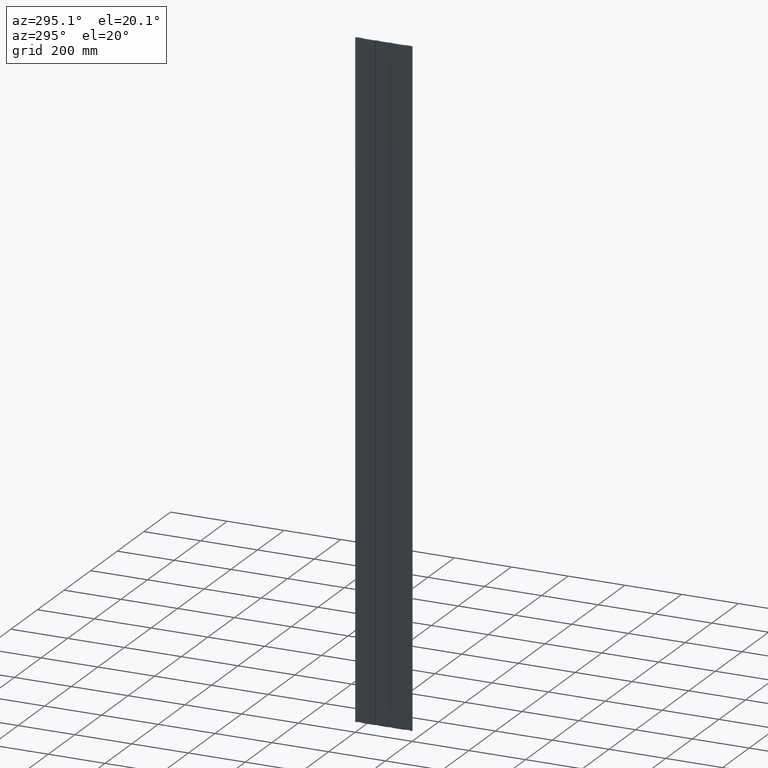
[diagram: clean part render]
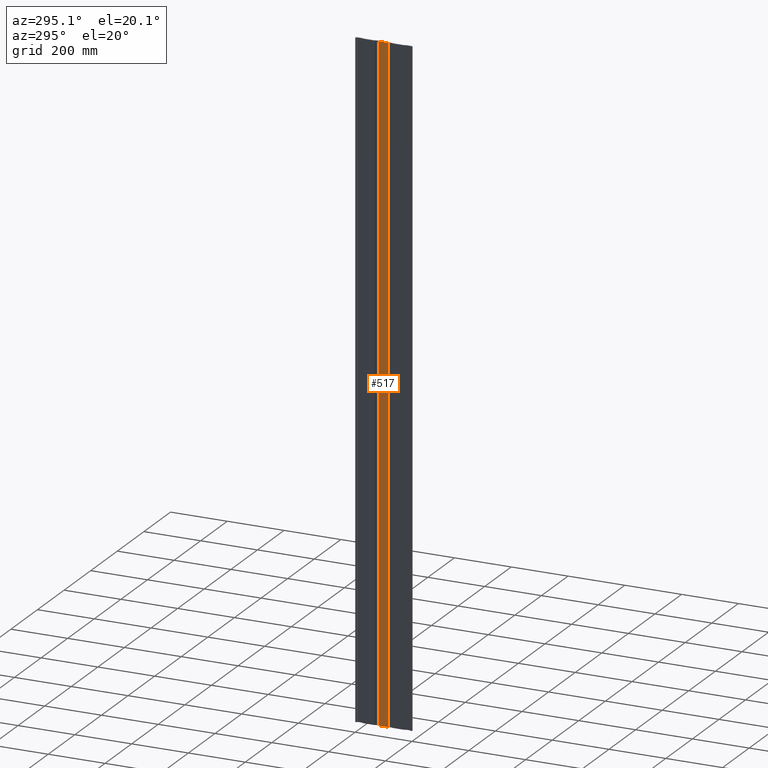
[diagram: same view with one face highlighted and labeled with its STEP entity id]
A machine part, auxiliary view. The second image highlights one B-rep face of the part: STEP entity #517.
In plain terms, the highlighted planar face has unit normal (1, 0, 0).
Its self-contained STEP definition (entity closure, byte-faithful):
#19 = EDGE_CURVE ( 'NONE', #1477, #1703, #2152, .T. ) ;
#29 = EDGE_CURVE ( 'NONE', #441, #1703, #1513, .T. ) ;
#45 = ORIENTED_EDGE ( 'NONE', *, *, #19, .T. ) ;
#104 = ORIENTED_EDGE ( 'NONE', *, *, #474, .T. ) ;
#130 = CARTESIAN_POINT ( 'NONE',  ( 1.301042606982605300E-015, 115.9378221735089200, 1162.000000000000000 ) ) ;
#177 = DIRECTION ( 'NONE',  ( -0.0000000000000000000, -1.000000000000000000, -0.0000000000000000000 ) ) ;
#327 = PLANE ( 'NONE',  #1989 ) ;
#441 = VERTEX_POINT ( 'NONE', #1224 ) ;
#462 = CARTESIAN_POINT ( 'NONE',  ( 3.668567479684642600E-017, 84.06217782649108000, -1162.000000000000000 ) ) ;
#474 = EDGE_CURVE ( 'NONE', #1967, #1477, #1122, .T. ) ;
#503 = CARTESIAN_POINT ( 'NONE',  ( 1.301042606982605300E-015, 115.9378221735089200, 1162.000000000000000 ) ) ;
#505 = DIRECTION ( 'NONE',  ( -0.0000000000000000000, -1.000000000000000000, -0.0000000000000000000 ) ) ;
#514 = DIRECTION ( 'NONE',  ( 1.000000000000000000, 0.0000000000000000000, 0.0000000000000000000 ) ) ;
#517 = ADVANCED_FACE ( 'NONE', ( #2023 ), #327, .F. ) ;
#561 = EDGE_LOOP ( 'NONE', ( #45, #2210, #2482, #104 ) ) ;
#685 = VECTOR ( 'NONE', #505, 1000.000000000000000 ) ;
#974 = VECTOR ( 'NONE', #1697, 1000.000000000000000 ) ;
#1122 = LINE ( 'NONE', #503, #1383 ) ;
#1224 = CARTESIAN_POINT ( 'NONE',  ( 3.668567479684642600E-017, 84.06217782649108000, 1162.000000000000000 ) ) ;
#1383 = VECTOR ( 'NONE', #2483, 1000.000000000000000 ) ;
#1477 = VERTEX_POINT ( 'NONE', #2119 ) ;
#1489 = CARTESIAN_POINT ( 'NONE',  ( 3.668567479684642600E-017, 84.06217782649108000, 1162.000000000000000 ) ) ;
#1513 = LINE ( 'NONE', #1489, #974 ) ;
#1648 = CARTESIAN_POINT ( 'NONE',  ( 3.668567479684642600E-017, 84.06217782649108000, 1162.000000000000000 ) ) ;
#1697 = DIRECTION ( 'NONE',  ( -0.0000000000000000000, -0.0000000000000000000, -1.000000000000000000 ) ) ;
#1703 = VERTEX_POINT ( 'NONE', #462 ) ;
#1857 = CARTESIAN_POINT ( 'NONE',  ( 3.668567479684642600E-017, 84.06217782649108000, 1162.000000000000000 ) ) ;
#1868 = DIRECTION ( 'NONE',  ( 0.0000000000000000000, 0.0000000000000000000, -1.000000000000000000 ) ) ;
#1869 = LINE ( 'NONE', #1857, #685 ) ;
#1967 = VERTEX_POINT ( 'NONE', #130 ) ;
#1989 = AXIS2_PLACEMENT_3D ( 'NONE', #1648, #514, #1868 ) ;
#2023 = FACE_OUTER_BOUND ( 'NONE', #561, .T. ) ;
#2071 = VECTOR ( 'NONE', #177, 1000.000000000000000 ) ;
#2113 = CARTESIAN_POINT ( 'NONE',  ( 3.668567479684642600E-017, 84.06217782649108000, -1162.000000000000000 ) ) ;
#2119 = CARTESIAN_POINT ( 'NONE',  ( 1.301042606982605300E-015, 115.9378221735089200, -1162.000000000000000 ) ) ;
#2152 = LINE ( 'NONE', #2113, #2071 ) ;
#2210 = ORIENTED_EDGE ( 'NONE', *, *, #29, .F. ) ;
#2303 = EDGE_CURVE ( 'NONE', #1967, #441, #1869, .T. ) ;
#2482 = ORIENTED_EDGE ( 'NONE', *, *, #2303, .F. ) ;
#2483 = DIRECTION ( 'NONE',  ( -0.0000000000000000000, -0.0000000000000000000, -1.000000000000000000 ) ) ;